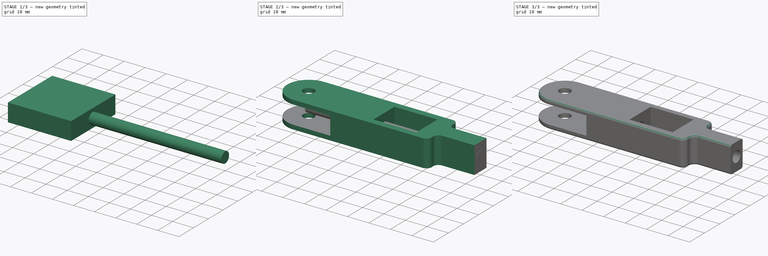
[diagram: build sequence overview — one tinted view per stage of 3, left to right]
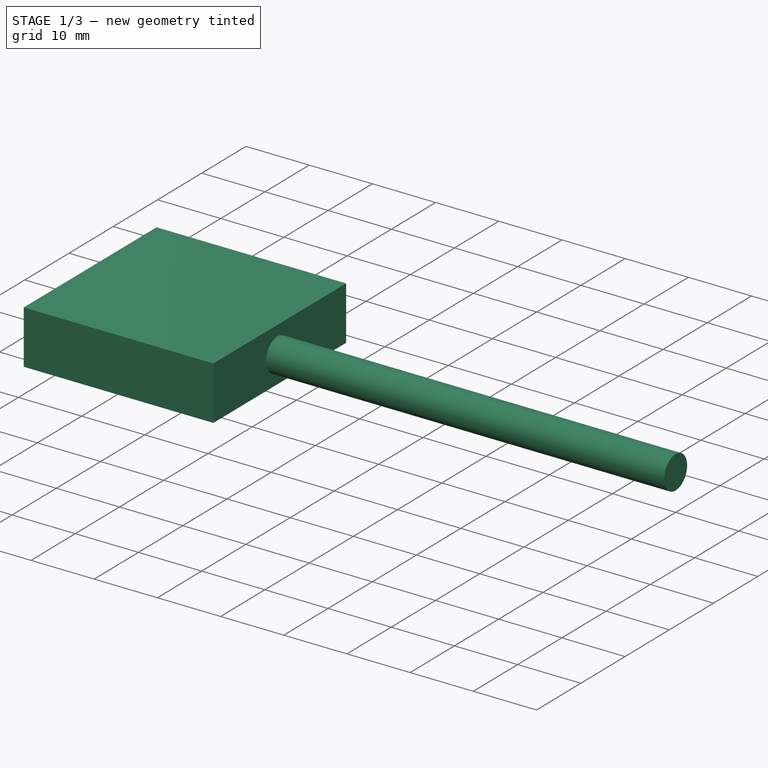
[diagram: stage 1 of 3 — iso view after this stage's code; geometry added in this stage tinted green]
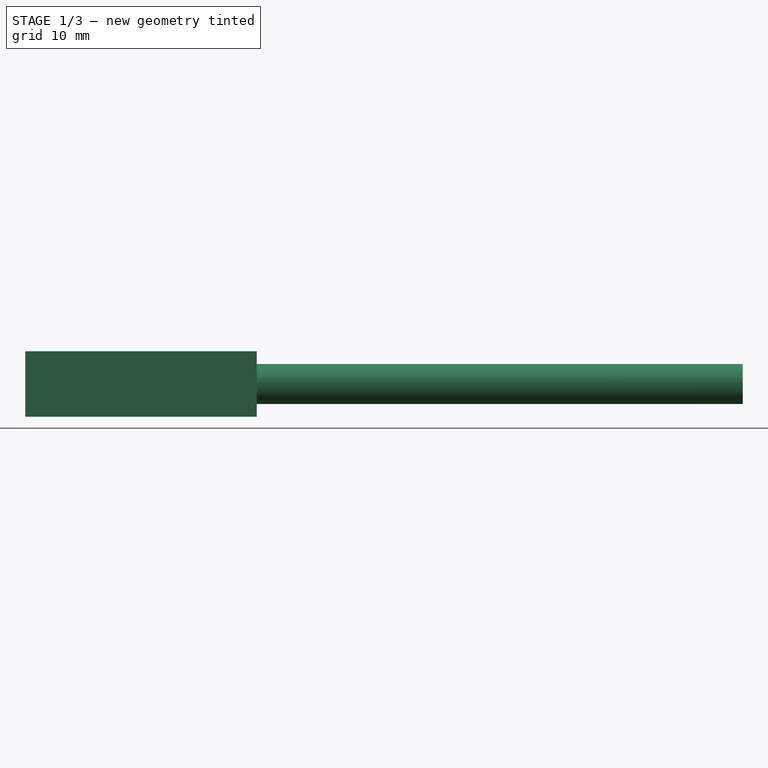
[diagram: stage 1 of 3 — front view after this stage's code; geometry added in this stage tinted green]
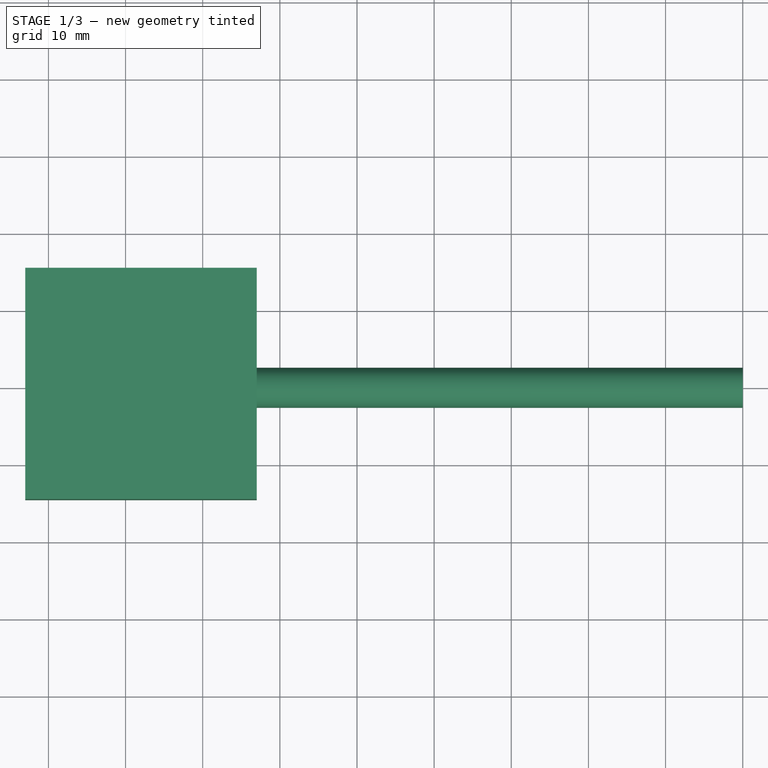
[diagram: stage 1 of 3 — top view after this stage's code; geometry added in this stage tinted green]
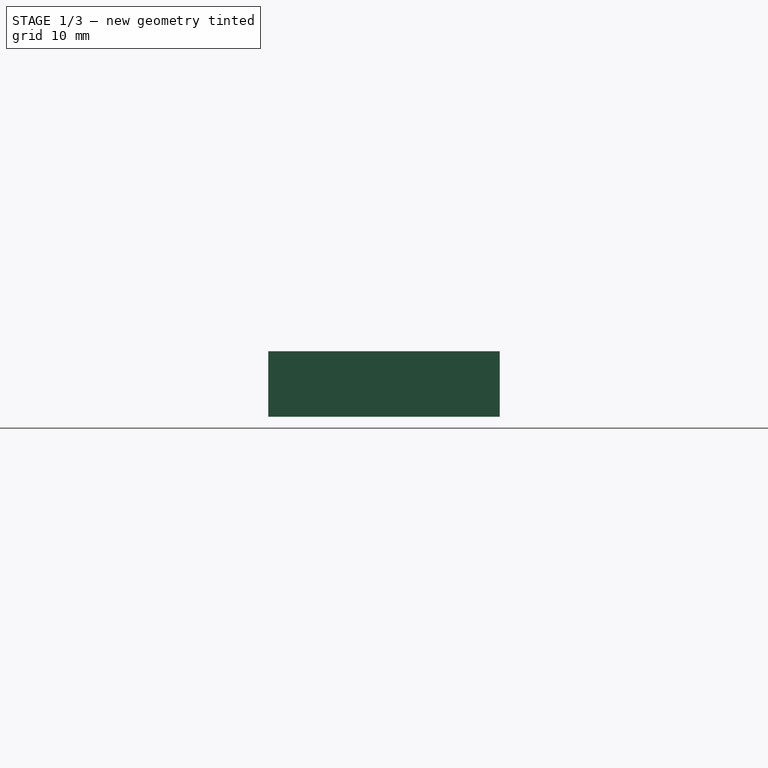
[diagram: stage 1 of 3 — right view after this stage's code; geometry added in this stage tinted green]
FCSTD DOCUMENT  (FreeCAD 0.21R33771 (Git))
Label: SFT-Mk5-Adjustable Clevis
License: Public Domain
LicenseURL: https://en.wikipedia.org/wiki/Public_domain
objects: Part::Cut×2, PartDesign::CoordinateSystem×1, Sketcher::SketchObject×1, Part::Extrusion×1, Part::Box×1, Part::Cylinder×1, Part::Fillet×1, PartDesign::Line×1, App::Part×1
note: 9 computed .brp shape members not serialized (recipe doc carries the construction recipe); baked Part::Feature solids carry a one-line shape summary decoded from their .brp

FEATURE [Part::Box] Box  label="Slot Cutter"
  AttacherType = Attacher::AttachEngine3D
  Height = 8.5
  Length = 30
  Placement = pos=(-13,-14.5,-4.25) rot=(0,0,1;0rad)
  Width = 30
FEATURE [Part::Cylinder] Cylinder  label="Shaft Cutter"
  Angle = 360
  AttacherType = Attacher::AttachEngine3D
  FirstAngle = 0
  Height = 80
  Placement = pos=(80,0,8e-15) rot=(0,-1,0;1.5708rad)
  Radius = 2.6
  SecondAngle = 0
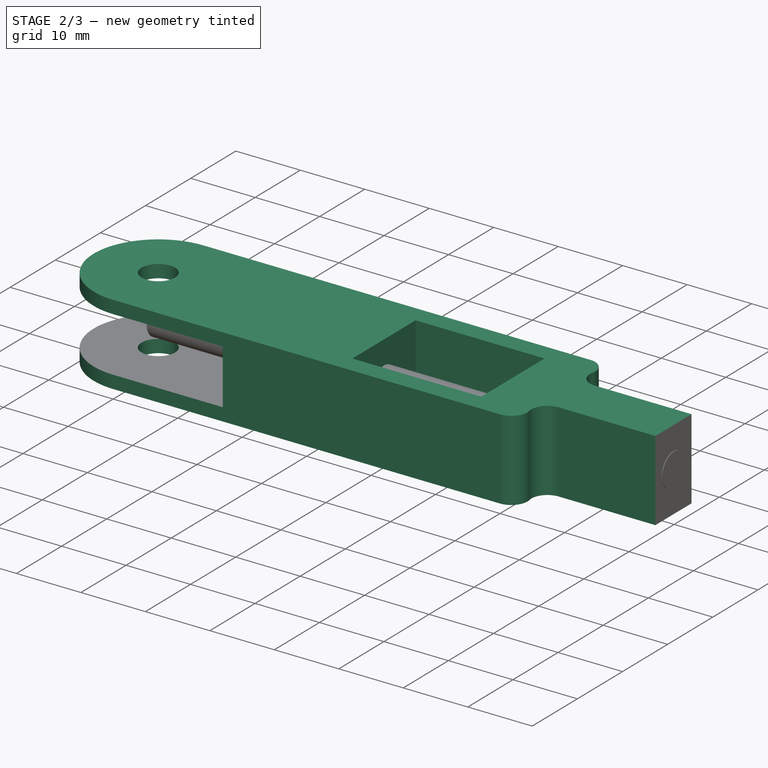
[diagram: stage 2 of 3 — iso view after this stage's code; geometry added in this stage tinted green]
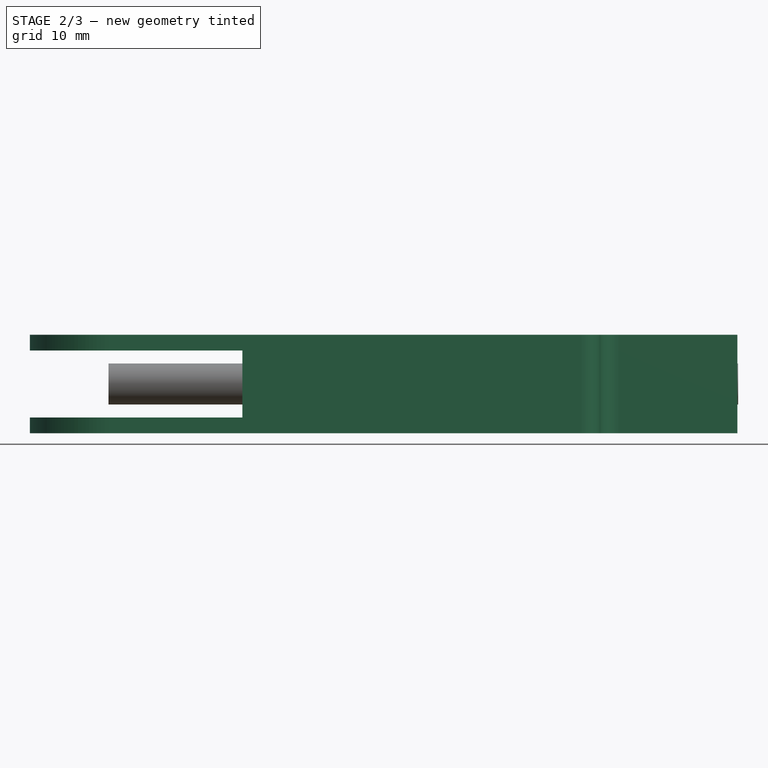
[diagram: stage 2 of 3 — front view after this stage's code; geometry added in this stage tinted green]
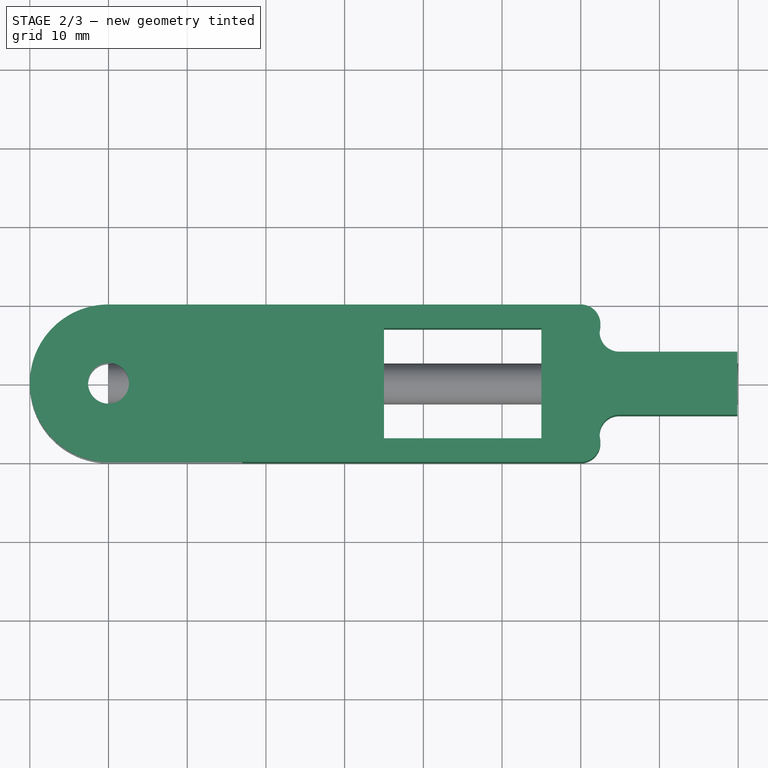
[diagram: stage 2 of 3 — top view after this stage's code; geometry added in this stage tinted green]
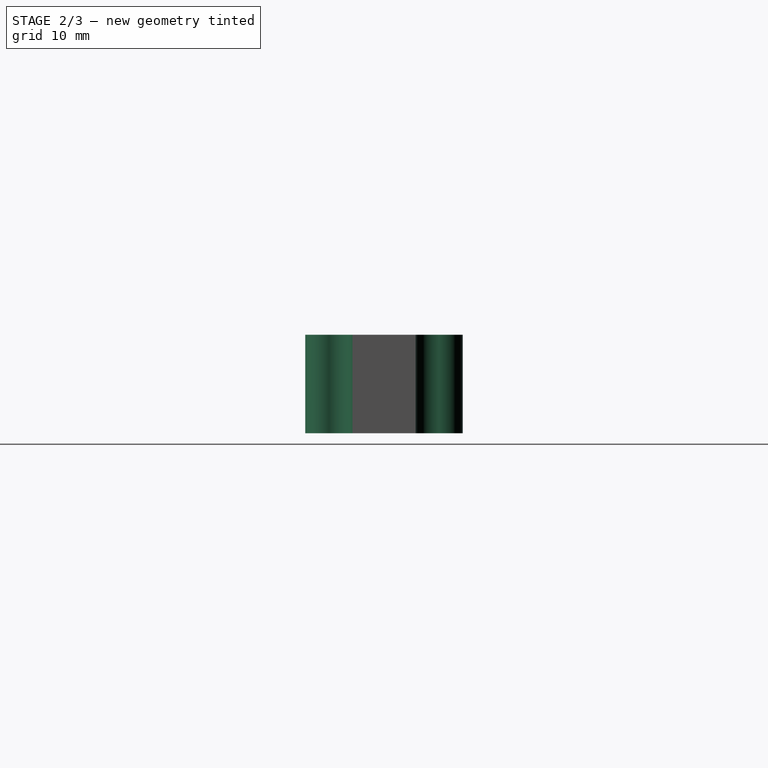
[diagram: stage 2 of 3 — right view after this stage's code; geometry added in this stage tinted green]
FEATURE [PartDesign::CoordinateSystem] LCS_Origin  label="Yoke AP"
  AttacherType = Attacher::AttachEngine3D
  MapMode = 2
  Support = -> [X_Axis]
FEATURE [Sketcher::SketchObject] Sketch  label="Clevis Pad Sketch"
  FullyConstrained = true
  MapMode = 5
  Support = -> [XY_Plane]
  sketch-geometry (15):
    g0: Circle CenterX=0 CenterY=0 CenterZ=0 NormalX=0 NormalY=0 NormalZ=1 AngleXU=0 Radius=2.6
    g1: ArcOfCircle CenterX=0 CenterY=0 CenterZ=0 NormalX=0 NormalY=0 NormalZ=1 AngleXU=0 Radius=10 StartAngle=1.5708 EndAngle=4.71239
    g2: LineSegment StartX=-1.8e-15 StartY=-10 StartZ=0 EndX=60 EndY=-10 EndZ=0
    g3: LineSegment StartX=6e-16 StartY=10 StartZ=0 EndX=60 EndY=10 EndZ=0
    g4: LineSegment StartX=79.899 StartY=4 StartZ=0 EndX=79.899 EndY=-4 EndZ=0
    g5: LineSegment StartX=35 StartY=7 StartZ=0 EndX=55 EndY=7 EndZ=0
    g6: LineSegment StartX=55 StartY=7 StartZ=0 EndX=55 EndY=-7 EndZ=0
    g7: LineSegment StartX=55 StartY=-7 StartZ=0 EndX=35 EndY=-7 EndZ=0
    g8: LineSegment StartX=35 StartY=-7 StartZ=0 EndX=35 EndY=7 EndZ=0
    g9: ArcOfCircle CenterX=60 CenterY=7.5 CenterZ=0 NormalX=0 NormalY=0 NormalZ=1 AngleXU=0 Radius=2.5 StartAngle=6.08183 EndAngle=7.85398
    g10: ArcOfCircle CenterX=64.899 CenterY=6.5 CenterZ=0 NormalX=0 NormalY=0 NormalZ=1 AngleXU=0 Radius=2.5 StartAngle=2.94023 EndAngle=4.71239
    g11: ArcOfCircle CenterX=60 CenterY=-7.5 CenterZ=0 NormalX=0 NormalY=0 NormalZ=1 AngleXU=0 Radius=2.5 StartAngle=4.71239 EndAngle=6.48454
    g12: ArcOfCircle CenterX=64.899 CenterY=-6.5 CenterZ=0 NormalX=0 NormalY=0 NormalZ=1 AngleXU=0 Radius=2.5 StartAngle=1.5708 EndAngle=3.34295
    g13: LineSegment StartX=64.899 StartY=4 StartZ=0 EndX=79.899 EndY=4 EndZ=0
    g14: LineSegment StartX=64.899 StartY=-4 StartZ=0 EndX=79.899 EndY=-4 EndZ=0
  constraints (40):
    c: Coincident(g0,g-1)
    c: Radius(g0) = 2.6
    c: Coincident(g1,g0)
    c: PointOnObject(g1,g-2)
    c: PointOnObject(g1,g-2)
    c: Coincident(g2,g1)
    c: Horizontal(g2)
    c: Coincident(g3,g1)
    c: Horizontal(g3)
    c: Radius(g1) = 10
    c: DistanceX(g2,g2) = 60
    c: Equal(g3,g2)
    c: Symmetric(g4,g4,g-1)
    c: Coincident(g5,g6)
    c: Coincident(g6,g7)
    c: Coincident(g7,g8)
    c: Coincident(g8,g5)
    c: Horizontal(g5)
    c: Horizontal(g7)
    c: Vertical(g8)
    c: Symmetric(g5,g6,g-1)
    c: DistanceY(g6,g6) = 14
    c: DistanceX(g5,g5) = 20
    c: DistanceX(g7) = 35
    c: Radius(g9) = 2.5
    c: Equal(g9,g10)
    c: Equal(g10,g12)
    c: Equal(g12,g11)
    c: Tangent(g9,g3) = 1.5708
    c: Tangent(g10,g9) = 1.5708
    c: Tangent(g11,g2) = -1.5708
    c: Tangent(g12,g11) = 1.5708
    c: Coincident(g13,g4)
    c: Coincident(g14,g4)
    c: Horizontal(g14)
    c: Horizontal(g13)
    c: DistanceY(g4,g4) = 8
    c: Tangent(g13,g10) = -1.5708
    c: Tangent(g14,g12) = 1.5708
    c: DistanceX(g13,g13) = 15
FEATURE [Part::Extrusion] Extrude
  Base = -> Sketch
  Dir = (0,0,1)
  DirMode = 2
  FaceMakerClass = Part::FaceMakerBullseye
  LengthFwd = 12.5
  LengthRev = 0
  Solid = true
  Symmetric = true
FEATURE [Part::Cut] Cut
  Base = -> Extrude
  Tool = -> Box
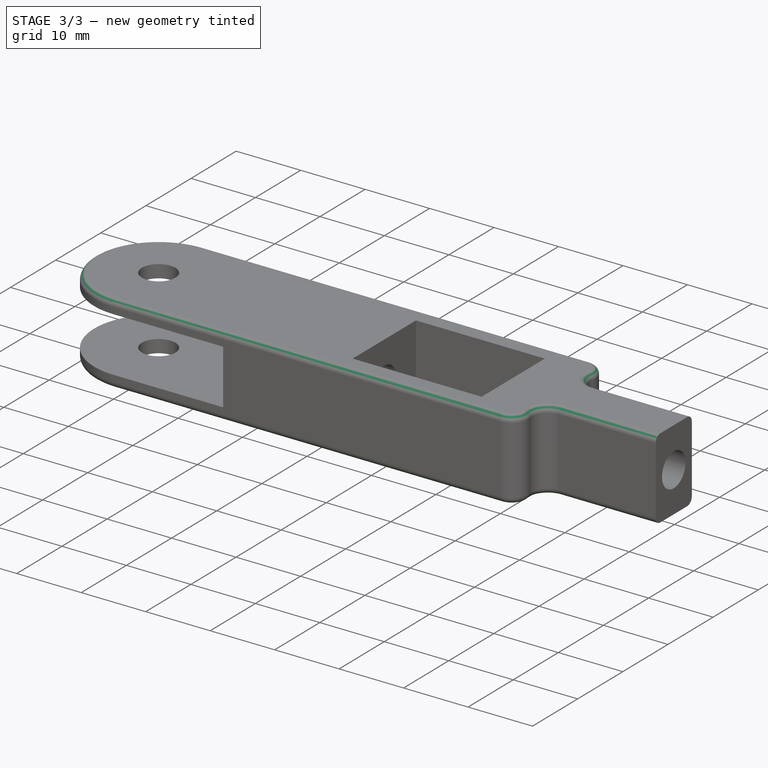
[diagram: stage 3 of 3 — iso view after this stage's code; geometry added in this stage tinted green]
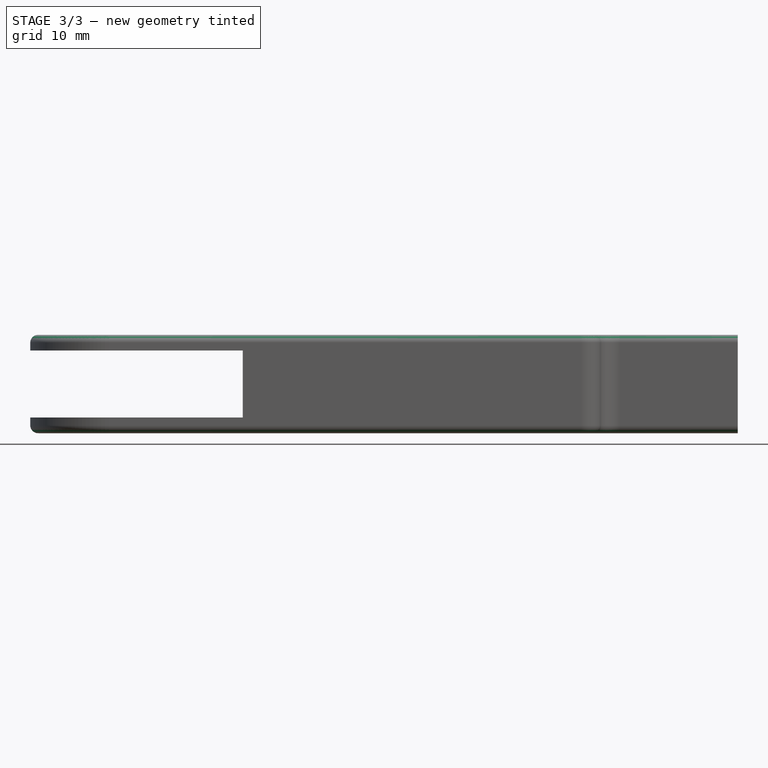
[diagram: stage 3 of 3 — front view after this stage's code; geometry added in this stage tinted green]
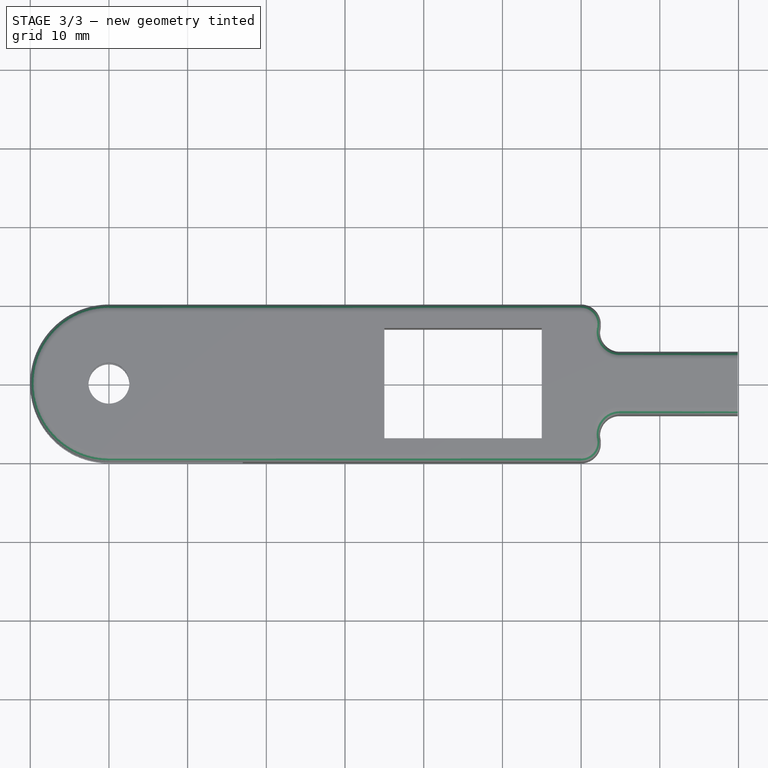
[diagram: stage 3 of 3 — top view after this stage's code; geometry added in this stage tinted green]
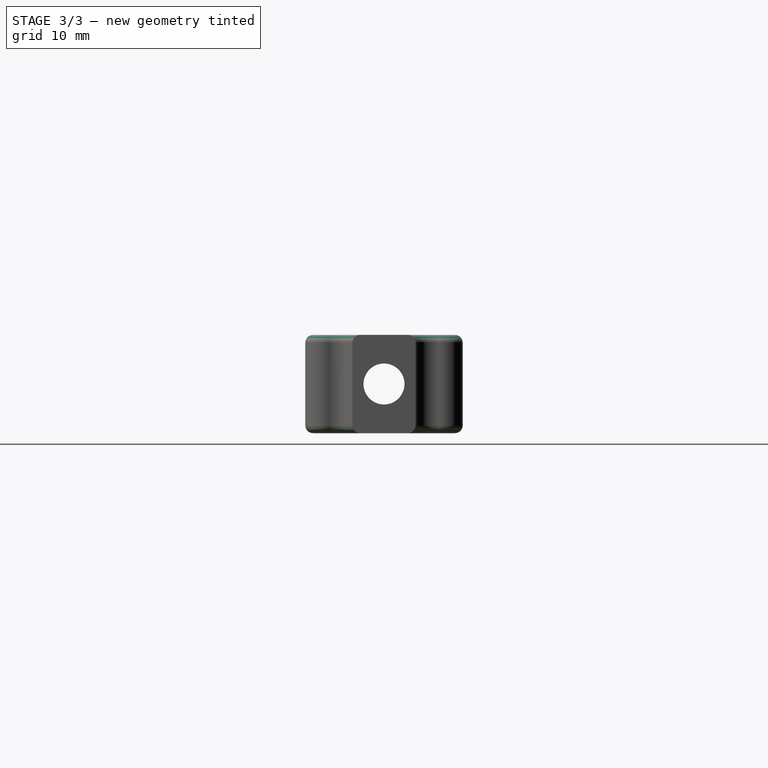
[diagram: stage 3 of 3 — right view after this stage's code; geometry added in this stage tinted green]
FEATURE [Part::Cut] Cut001
  Base = -> Cut
  Tool = -> Cylinder
FEATURE [Part::Fillet] Fillet
  Base = -> Cut001
  Edges = 12 edges r=1: [Edge3,Edge4,Edge6,Edge7,Edge17,Edge18,Edge19,Edge21,Edge29,Edge30,Edge31,Edge33]
FEATURE [PartDesign::Line] HoleAxis_1  label="Shaft AP"
  AttacherType = Attacher::AttachEngineLine
  Length = 7.04534
  MapMode = 19
  Placement = pos=(79.899,0,8e-15) rot=(-0.707107,0,-0.707107;3.14159rad)
  ResizeMode = 1
  Support = -> [Fillet]
FEATURE [App::Part] Clevis  label="Adjustable Clevis"
  Group = -> [LCS_Origin,Sketch,Extrude,Cut,Box,Cylinder,Cut001,HoleAxis_1,Fillet]
  Origin = -> Origin
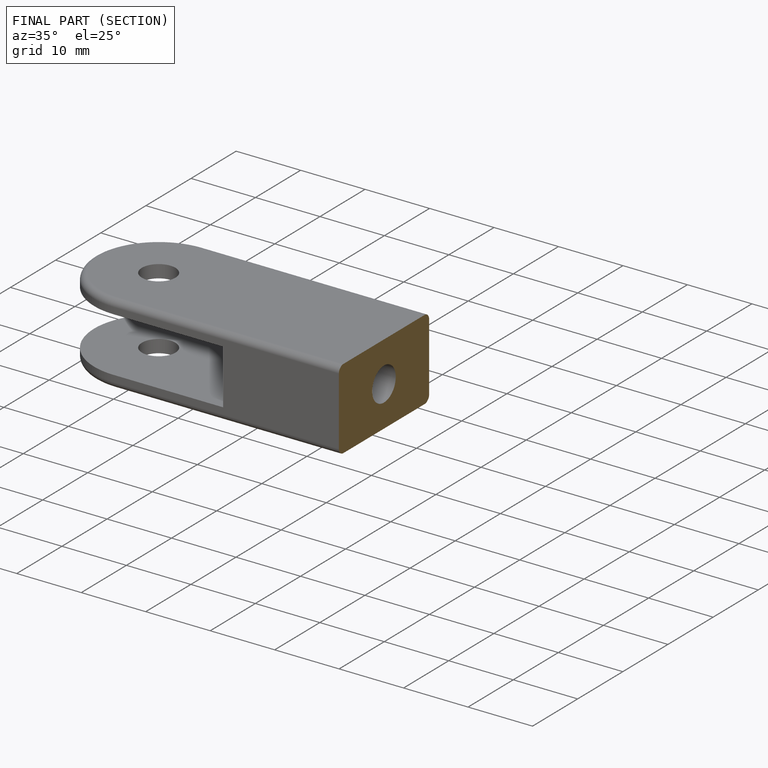
[diagram: finished part — half-section view (interior)]
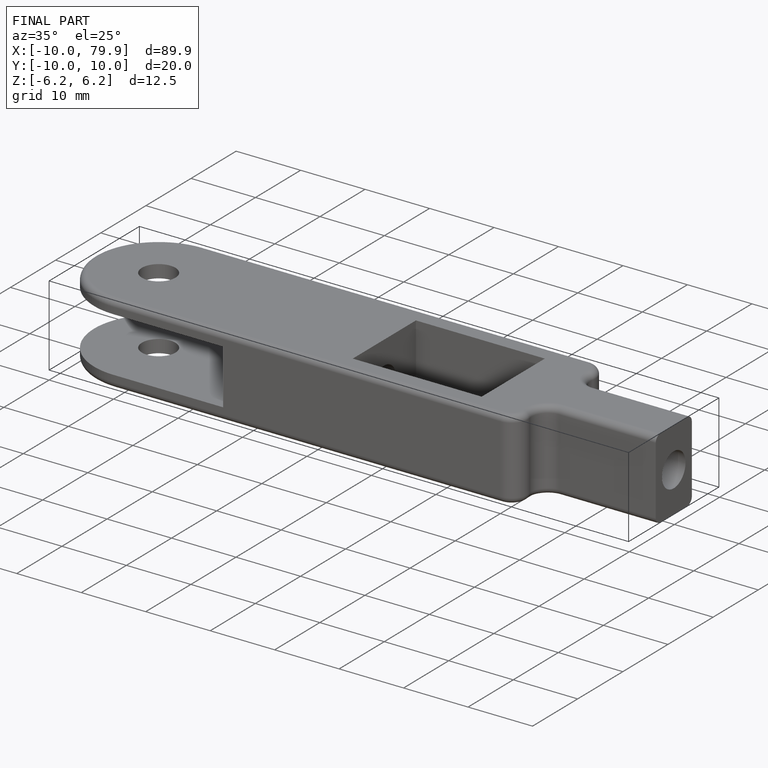
[diagram: finished part — iso view with bounding-box wireframe]
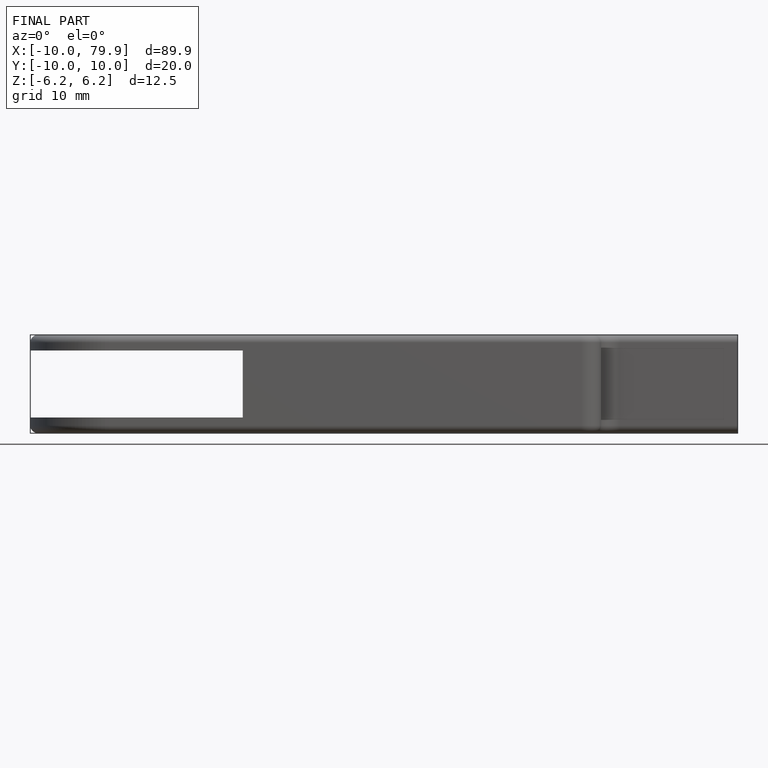
[diagram: finished part — front view with bounding-box wireframe]
